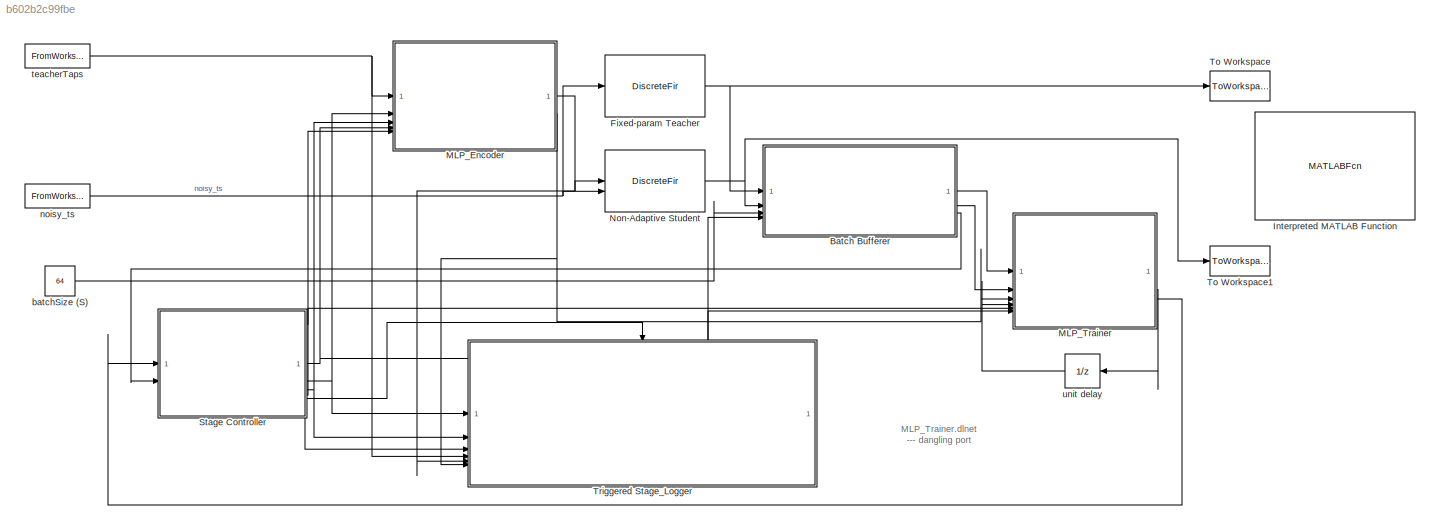
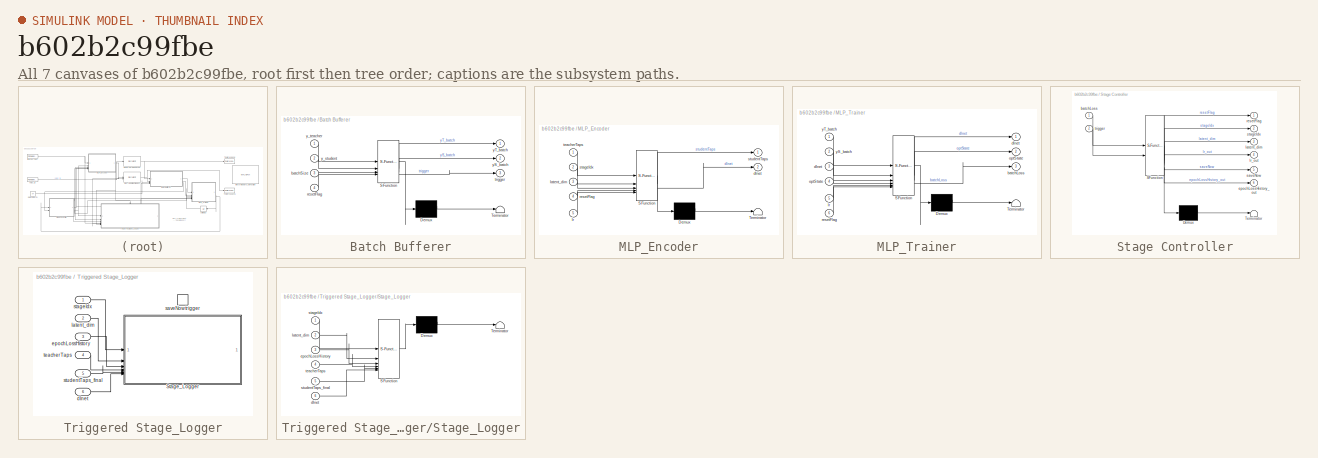
[diagram: thumbnail index - all 7 canvases of the model, root first then tree order]
MODEL slx_b602b2c99fbe
KIND model
CONFIG AbsTol = auto
CONFIG EnableMultiTasking = off
CONFIG FixedStep = auto
CONFIG MaxStep = auto
CONFIG MinStep = auto
CONFIG RelTol = 1e-3
CONFIG SampleTimeConstraint = Unconstrained
CONFIG SolverName = VariableStepAuto
CONFIG StartTime = 0.0
CONFIG StopTime = 1000
BLOCK [SubSystem] Batch Bufferer
  ErrorFcn = Stateflow.Translate.translate
  PermitHierarchicalResolution = ExplicitOnly
  SFBlockType = MATLAB Function
  TreatAsAtomicUnit = on
BLOCK [Demux] Batch Bufferer/ Demux 
  Outputs = 1
BLOCK [S-Function] Batch Bufferer/ SFunction 
  EnableBusSupport = off
  FunctionName = sf_sfun
  PortCounts = [4 4]
  SFcnIsStateOwnerBlock = off
  SFunctionDeploymentMode = off
  Tag = Stateflow S-Function 1
BLOCK [Terminator] Batch Bufferer/ Terminator 
BLOCK [Inport] Batch Bufferer/batchSize
  Port = 3
BLOCK [Inport] Batch Bufferer/resetFlag
  Port = 4
BLOCK [Outport] Batch Bufferer/trigger
  Port = 3
BLOCK [Outport] Batch Bufferer/yS_batch
  Port = 2
BLOCK [Outport] Batch Bufferer/yT_batch
BLOCK [Inport] Batch Bufferer/y_student
  Port = 2
BLOCK [Inport] Batch Bufferer/y_teacher
BLOCK [DiscreteFir] Fixed-param Teacher
  CloseFcn = dspblkCoreblockFVToolHelper(gcbh,'close');
  Coefficients = teacherTaps(:)'
  CopyFcn = dspblkCoreblockFVToolHelper(gcbh,'copy');
  DeleteFcn = dspblkCoreblockFVToolHelper(gcbh,'close');
  InputPortMap = u0
  LoadFcn = dspblkCoreblockFVToolHelper(gcbh,'load');
  ModelCloseFcn = dspblkCoreblockFVToolHelper(gcbh,'close');
  OutputPortMap = o0
  PostSaveFcn = dspblkCoreblockFVToolHelper(gcbh,'postsave');
  PreSaveFcn = dspblkCoreblockFVToolHelper(gcbh,'presave');
BLOCK [MATLABFcn] Interpreted MATLAB Function
  MATLABFcn = MLP_Encoder
BLOCK [SubSystem] MLP_Encoder
  ErrorFcn = Stateflow.Translate.translate
  PermitHierarchicalResolution = ExplicitOnly
  SFBlockType = MATLAB Function
  TreatAsAtomicUnit = on
BLOCK [Demux] MLP_Encoder/ Demux 
  Outputs = 1
BLOCK [S-Function] MLP_Encoder/ SFunction 
  EnableBusSupport = off
  FunctionName = sf_sfun
  PortCounts = [5 3]
  SFcnIsStateOwnerBlock = off
  SFunctionDeploymentMode = off
  Tag = Stateflow S-Function 2
BLOCK [Terminator] MLP_Encoder/ Terminator 
BLOCK [Outport] MLP_Encoder/dlnet
  Port = 2
BLOCK [Inport] MLP_Encoder/latent_dim
  Port = 3
BLOCK [Inport] MLP_Encoder/lr
  Port = 5
BLOCK [Inport] MLP_Encoder/resetFlag
  Port = 4
BLOCK [Inport] MLP_Encoder/stageIdx
  Port = 2
BLOCK [Outport] MLP_Encoder/studentTaps
BLOCK [Inport] MLP_Encoder/teacherTaps
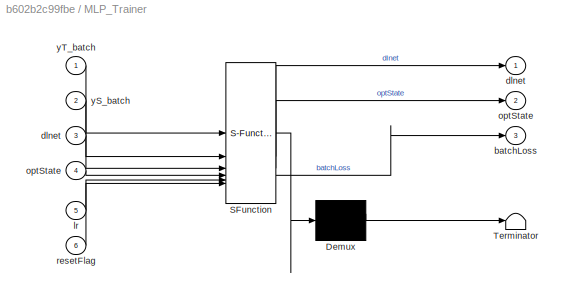
BLOCK [SubSystem] MLP_Trainer
  ErrorFcn = Stateflow.Translate.translate
  PermitHierarchicalResolution = ExplicitOnly
  SFBlockType = MATLAB Function
  TreatAsAtomicUnit = on
BLOCK [Demux] MLP_Trainer/ Demux 
  Outputs = 1
BLOCK [S-Function] MLP_Trainer/ SFunction 
  EnableBusSupport = off
  FunctionName = sf_sfun
  PortCounts = [6 4]
  SFcnIsStateOwnerBlock = off
  SFunctionDeploymentMode = off
  Tag = Stateflow S-Function 4
BLOCK [Terminator] MLP_Trainer/ Terminator 
BLOCK [Outport] MLP_Trainer/batchLoss
  Port = 3
BLOCK [Outport] MLP_Trainer/dlnet
BLOCK [Inport] MLP_Trainer/dlnet 
  Port = 3
BLOCK [Inport] MLP_Trainer/lr
  Port = 5
BLOCK [Outport] MLP_Trainer/optState
  Port = 2
BLOCK [Inport] MLP_Trainer/optState 
  Port = 4
BLOCK [Inport] MLP_Trainer/resetFlag
  Port = 6
BLOCK [Inport] MLP_Trainer/yS_batch
  Port = 2
BLOCK [Inport] MLP_Trainer/yT_batch
BLOCK [DiscreteFir] Non-Adaptive Student
  CloseFcn = dspblkCoreblockFVToolHelper(gcbh,'close');
  CoefSource = Input port
  CopyFcn = dspblkCoreblockFVToolHelper(gcbh,'copy');
  DeleteFcn = dspblkCoreblockFVToolHelper(gcbh,'close');
  InputPortMap = u0,u1
  LoadFcn = dspblkCoreblockFVToolHelper(gcbh,'load');
  ModelCloseFcn = dspblkCoreblockFVToolHelper(gcbh,'close');
  OutputPortMap = o0
  PostSaveFcn = dspblkCoreblockFVToolHelper(gcbh,'postsave');
  PreSaveFcn = dspblkCoreblockFVToolHelper(gcbh,'presave');
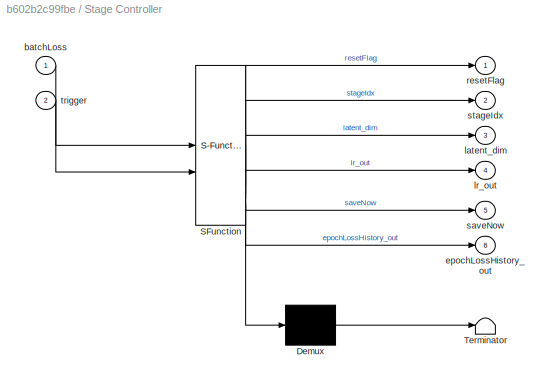
BLOCK [SubSystem] Stage Controller
  ErrorFcn = Stateflow.Translate.translate
  PermitHierarchicalResolution = ExplicitOnly
  SFBlockType = MATLAB Function
  TreatAsAtomicUnit = on
BLOCK [Demux] Stage Controller/ Demux 
  Outputs = 1
BLOCK [S-Function] Stage Controller/ SFunction 
  EnableBusSupport = off
  FunctionName = sf_sfun
  PortCounts = [2 7]
  SFcnIsStateOwnerBlock = off
  SFunctionDeploymentMode = off
  Tag = Stateflow S-Function 3
BLOCK [Terminator] Stage Controller/ Terminator 
BLOCK [Inport] Stage Controller/batchLoss
BLOCK [Outport] Stage Controller/epochLossHistory_out
  Port = 6
BLOCK [Outport] Stage Controller/latent_dim
  Port = 3
BLOCK [Outport] Stage Controller/lr_out
  Port = 4
BLOCK [Outport] Stage Controller/resetFlag
BLOCK [Outport] Stage Controller/saveNow
  Port = 5
BLOCK [Outport] Stage Controller/stageIdx
  Port = 2
BLOCK [Inport] Stage Controller/trigger
  Port = 2
BLOCK [ToWorkspace] To Workspace
  FixptAsFi = on
  MaxDataPoints = inf
  SampleTime = -1
  SaveFormat = Timeseries
  VariableName = y_teacher
BLOCK [ToWorkspace] To Workspace1
  FixptAsFi = on
  MaxDataPoints = inf
  SampleTime = -1
  SaveFormat = Timeseries
  VariableName = y_student
BLOCK [SubSystem] Triggered Stage_Logger
  TreatAsAtomicUnit = on
BLOCK [SubSystem] Triggered Stage_Logger/Stage_Logger
  ErrorFcn = Stateflow.Translate.translate
  PermitHierarchicalResolution = ExplicitOnly
  SFBlockType = MATLAB Function
  TreatAsAtomicUnit = on
BLOCK [Demux] Triggered Stage_Logger/Stage_Logger/ Demux 
  Outputs = 1
BLOCK [S-Function] Triggered Stage_Logger/Stage_Logger/ SFunction 
  EnableBusSupport = off
  FunctionName = sf_sfun
  PortCounts = [6 1]
  SFcnIsStateOwnerBlock = off
  SFunctionDeploymentMode = off
  Tag = Stateflow S-Function 5
BLOCK [Terminator] Triggered Stage_Logger/Stage_Logger/ Terminator 
BLOCK [Inport] Triggered Stage_Logger/Stage_Logger/dlnet
  Port = 6
BLOCK [Inport] Triggered Stage_Logger/Stage_Logger/epochLossHistory
  Port = 3
BLOCK [Inport] Triggered Stage_Logger/Stage_Logger/latent_dim
  Port = 2
BLOCK [Inport] Triggered Stage_Logger/Stage_Logger/stageIdx
BLOCK [Inport] Triggered Stage_Logger/Stage_Logger/studentTaps_final
  Port = 5
BLOCK [Inport] Triggered Stage_Logger/Stage_Logger/teacherTaps
  Port = 4
BLOCK [Inport] Triggered Stage_Logger/dlnet
  Port = 6
BLOCK [Inport] Triggered Stage_Logger/epochLossHistory
  Port = 3
BLOCK [Inport] Triggered Stage_Logger/latent_dim
  Port = 2
BLOCK [TriggerPort] Triggered Stage_Logger/saveNow trigger
  StatesWhenEnabling = held
  VariantControl = (inherit)
BLOCK [Inport] Triggered Stage_Logger/stageIdx
BLOCK [Inport] Triggered Stage_Logger/studentTaps_final
  Port = 5
BLOCK [Inport] Triggered Stage_Logger/teacherTaps
  Port = 4
BLOCK [Constant] batchSize (S)
  Value = 64
BLOCK [FromWorkspace] noisy_ts
  SampleTime = 1
  VariableName = noisy_ts
BLOCK [FromWorkspace] teacherTaps
  VariableName = teacherTaps_ts
BLOCK [UnitDelay] unit delay
  HasFrameUpgradeWarning = on
  SampleTime = -1
ANNOTATION (root): MLP_Trainer.dlnet --- dangling port
LINE Batch Bufferer:1 -> MLP_Trainer:1
LINE Batch Bufferer:2 -> MLP_Trainer:2
LINE Batch Bufferer:3 -> Stage Controller:2
NET Fixed-param Teacher:1 -> Batch Bufferer:1, To Workspace:1
NET MLP_Encoder:1 -> Non-Adaptive Student:1, Triggered Stage_Logger:5
NET MLP_Encoder:2 -> MLP_Trainer:3, Triggered Stage_Logger:6
LINE MLP_Trainer:2 -> unit delay:1
LINE MLP_Trainer:3 -> Stage Controller:1
NET Non-Adaptive Student:1 -> Batch Bufferer:2, To Workspace1:1
NET Stage Controller:1 -> Batch Bufferer:4, MLP_Encoder:4, MLP_Trainer:6
NET Stage Controller:2 -> MLP_Encoder:2, Triggered Stage_Logger:1
NET Stage Controller:3 -> MLP_Encoder:3, Triggered Stage_Logger:2
NET Stage Controller:4 -> MLP_Encoder:5, MLP_Trainer:5
LINE Stage Controller:5 -> Triggered Stage_Logger:trigger
LINE Stage Controller:6 -> Triggered Stage_Logger:3
LINE Triggered Stage_Logger/dlnet:1 -> Triggered Stage_Logger/Stage_Logger:6
LINE Triggered Stage_Logger/epochLossHistory:1 -> Triggered Stage_Logger/Stage_Logger:3
LINE Triggered Stage_Logger/latent_dim:1 -> Triggered Stage_Logger/Stage_Logger:2
LINE Triggered Stage_Logger/stageIdx:1 -> Triggered Stage_Logger/Stage_Logger:1
LINE Triggered Stage_Logger/studentTaps_final:1 -> Triggered Stage_Logger/Stage_Logger:5
LINE Triggered Stage_Logger/teacherTaps:1 -> Triggered Stage_Logger/Stage_Logger:4
LINE batchSize (S):1 -> Batch Bufferer:3
NET noisy_ts:1 -> Fixed-param Teacher:1, Non-Adaptive Student:2
NET teacherTaps:1 -> MLP_Encoder:1, Triggered Stage_Logger:4
LINE unit delay:1 -> MLP_Trainer:4
note: NET lines group one-source signal fan-out (src -> all destinations, sorted); 1:1 wires keep LINE
CHART Batch Bufferer states=1 transitions=1
  STATE_LABEL 'eML_blk_kernel()'
  STATE_LABEL 'SCRIPT:\nfunction [yT_batch, yS_batch, trigger] = Batch_Bufferer(y_teacher, y_student, batchSize, resetFlag)\n% Batch_Bufferer — Collects synchronized teacher/student batches\n% --------------------------------------------------------------------\n% Inputs:\n%   y_teacher  : Current teacher output sample\n%   y_student  : Current student output sample\n%   batchSize  : Batch length for accumulation\n%   r...<+1527ch>'
CHART MLP_Encoder states=1 transitions=1
  STATE_LABEL 'eML_blk_kernel()'
  STATE_LABEL "SCRIPT:\nfunction [studentTaps, dlnet] = MLP_Encoder(teacherTaps, stageIdx, latent_dim, resetFlag, lr)\n%#codegen\npersistent dlnet_prev stageIdx_prev\n\n% ========================\n% 1. Initialize / Expand\n% ========================\nif isempty(dlnet_prev) || resetFlag || stageIdx ~= stageIdx_prev\n    fprintf('Initializing/Expanding MLP for Stage %d...\\n', stageIdx);\n\n    if isempty(dlnet_prev)\n        ...<+1777ch>"
CHART Stage Controller states=1 transitions=1
  STATE_LABEL 'eML_blk_kernel()'
  STATE_LABEL "SCRIPT:\nfunction [resetFlag, stageIdx, latent_dim, lr_out, saveNow, epochLossHistory_out] = Stage_Controller(batchLoss, trigger)\n% Stage_Controller — governs stage transitions and convergence\n% --------------------------------------------------------------\n\nparams = struct( ...\n    'student_latent_list', [48, 40, 32, 24, 16, 12, 8, 4], ...\n    'B', 32, ...\n    'mv_window', 5, ...\n    'patience', 3...<+3334ch>"
CHART MLP_Trainer states=1 transitions=1
  STATE_LABEL 'eML_blk_kernel()'
  STATE_LABEL 'SCRIPT:\nfunction [dlnet, optState, batchLoss] = MLP_Trainer(yT_batch, yS_batch, dlnet, optState, lr, resetFlag)\n% MLP_Trainer — Online runtime training block (Simulink-ready)\n% ------------------------------------------------------------\n% Responsibilities:\n%   1. Compute MSE loss between teacher and student filter outputs\n%   2. Backpropagate through the MLP (auto-diff)\n%   3. Apply Adam update u...<+2426ch>'
CHART Triggered Stage_Logger/Stage_Logger states=1 transitions=1
  STATE_LABEL 'eML_blk_kernel()'
  STATE_LABEL 'SCRIPT:\nfunction Stage_Logger(stageIdx, latent_dim, epochLossHistory, teacherTaps, studentTaps_final, dlnet)\n% Stage_Logger — Minimal per-stage logger for MLP KD training\n% -----------------------------------------------------------\n% Triggered once per stage when saveNow = true\n%\n% Inputs:\n%   stageIdx          : Current stage index\n%   latent_dim        : Latent dimension (K)\n%   epochLossHistor...<+3246ch>'
CHART  states=0 transitions=0
CHART  states=0 transitions=0
CHART  states=0 transitions=0
CHART  states=0 transitions=0
CHART  states=0 transitions=0
